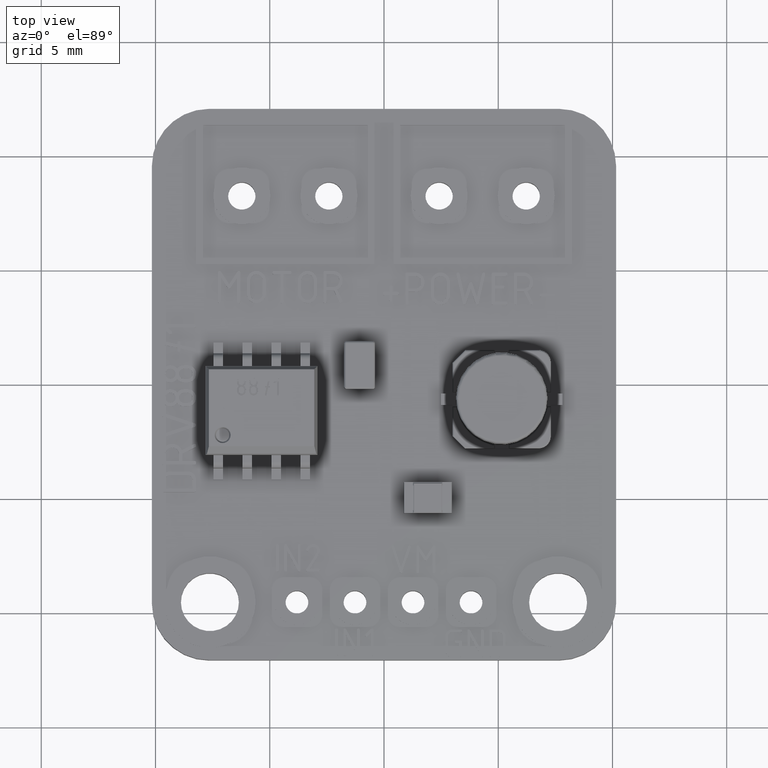
[diagram: clean part render]
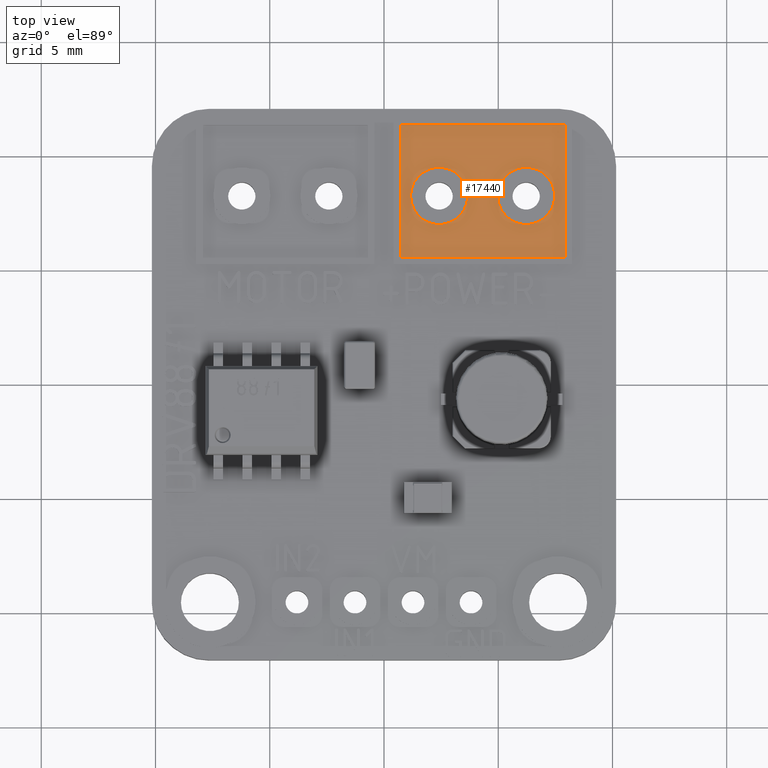
[diagram: same view with one face highlighted and labeled with its STEP entity id]
A machine part, top view. The second image highlights one B-rep face of the part: STEP entity #17440.
In plain terms, the highlighted planar face has unit normal (0, 0, 1).
Its self-contained STEP definition (entity closure, byte-faithful):
#266=CIRCLE('',#18230,1.25);
#267=CIRCLE('',#18231,1.25);
#574=FACE_BOUND('',#2609,.T.);
#575=FACE_BOUND('',#2610,.T.);
#863=PLANE('',#18229);
#1601=FACE_OUTER_BOUND('',#2608,.T.);
#2608=EDGE_LOOP('',(#13692,#13693,#13694,#13695));
#2609=EDGE_LOOP('',(#13696));
#2610=EDGE_LOOP('',(#13697));
#3559=LINE('',#25082,#5104);
#3562=LINE('',#25088,#5107);
#3565=LINE('',#25094,#5110);
#3568=LINE('',#25098,#5113);
#5104=VECTOR('',#19614,5.8);
#5107=VECTOR('',#19619,7.21);
#5110=VECTOR('',#19624,5.8);
#5113=VECTOR('',#19629,7.21000000000001);
#7327=VERTEX_POINT('',#25079);
#7328=VERTEX_POINT('',#25081);
#7330=VERTEX_POINT('',#25087);
#7332=VERTEX_POINT('',#25093);
#7783=VERTEX_POINT('',#27864);
#7784=VERTEX_POINT('',#27866);
#9189=EDGE_CURVE('',#7328,#7327,#3559,.T.);
#9192=EDGE_CURVE('',#7330,#7328,#3562,.T.);
#9195=EDGE_CURVE('',#7332,#7330,#3565,.T.);
#9198=EDGE_CURVE('',#7327,#7332,#3568,.T.);
#9867=EDGE_CURVE('',#7783,#7783,#266,.T.);
#9868=EDGE_CURVE('',#7784,#7784,#267,.T.);
#13692=ORIENTED_EDGE('',*,*,#9189,.T.);
#13693=ORIENTED_EDGE('',*,*,#9198,.T.);
#13694=ORIENTED_EDGE('',*,*,#9195,.T.);
#13695=ORIENTED_EDGE('',*,*,#9192,.T.);
#13696=ORIENTED_EDGE('',*,*,#9867,.T.);
#13697=ORIENTED_EDGE('',*,*,#9868,.T.);
#17440=ADVANCED_FACE('',(#1601,#574,#575),#863,.T.);
#18229=AXIS2_PLACEMENT_3D('',#27863,#20270,#20271);
#18230=AXIS2_PLACEMENT_3D('',#27865,#20272,#20273);
#18231=AXIS2_PLACEMENT_3D('',#27867,#20274,#20275);
#19614=DIRECTION('',(0.,1.,0.));
#19619=DIRECTION('',(1.,0.,0.));
#19624=DIRECTION('',(0.,-1.,0.));
#19629=DIRECTION('',(-1.,0.,0.));
#20270=DIRECTION('center_axis',(0.,0.,1.));
#20271=DIRECTION('ref_axis',(1.,0.,0.));
#20272=DIRECTION('center_axis',(0.,0.,-1.));
#20273=DIRECTION('ref_axis',(-1.,0.,0.));
#20274=DIRECTION('center_axis',(0.,0.,-1.));
#20275=DIRECTION('ref_axis',(-1.,0.,0.));
#25079=CARTESIAN_POINT('',(7.923,11.355,0.75));
#25081=CARTESIAN_POINT('',(7.923,5.555,0.75));
#25082=CARTESIAN_POINT('',(7.923,5.555,0.75));
#25087=CARTESIAN_POINT('',(0.712999999999998,5.555,0.75));
#25088=CARTESIAN_POINT('',(0.712999999999998,5.555,0.75));
#25093=CARTESIAN_POINT('',(0.712999999999995,11.355,0.75));
#25094=CARTESIAN_POINT('',(0.712999999999994,11.355,0.75));
#25098=CARTESIAN_POINT('',(7.923,11.355,0.75));
#27863=CARTESIAN_POINT('Origin',(2.775558E-16,-3.469447E-16,0.75));
#27864=CARTESIAN_POINT('',(3.663,8.255,0.75));
#27865=CARTESIAN_POINT('Origin',(2.413,8.255,0.75));
#27866=CARTESIAN_POINT('',(7.473,8.255,0.75));
#27867=CARTESIAN_POINT('Origin',(6.223,8.255,0.75));